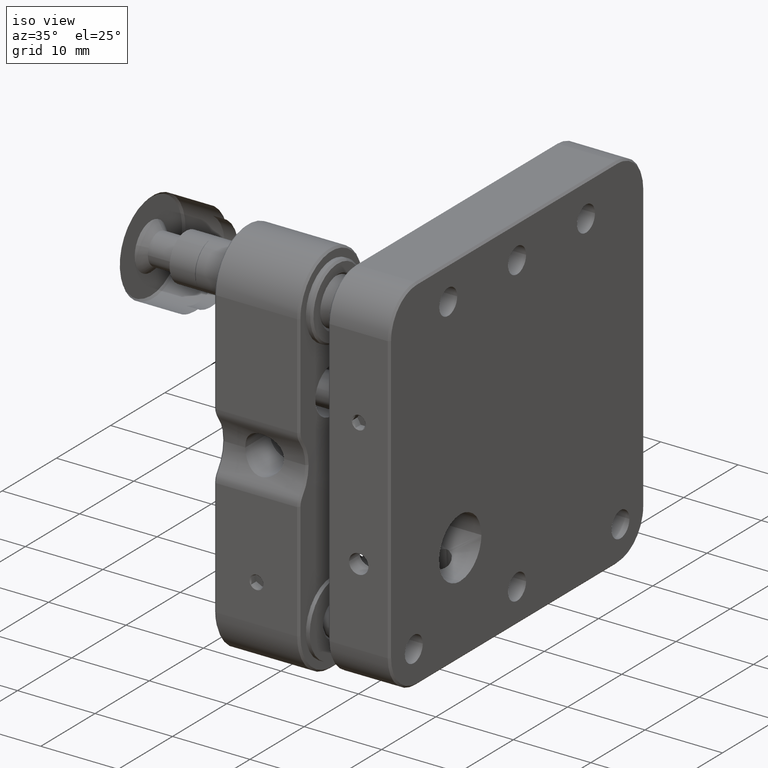
[diagram: clean part render]
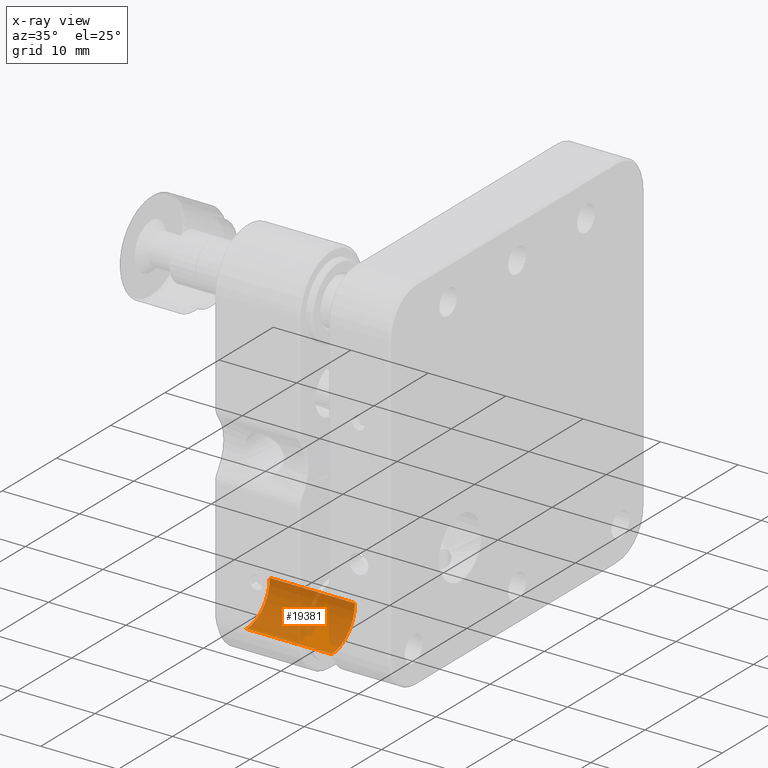
[diagram: x-ray — body ghosted, one internal face saturated and labeled with its STEP entity id]
A machine part, iso view, then the same camera in x-ray: the body is ghosted and one INTERNAL B-rep face — a face not visible from any outside direction — is saturated and labeled: STEP entity #19381.
In plain terms, the highlighted face is a freeform B-spline surface patch.
Its self-contained STEP definition (entity closure, byte-faithful):
#142 = CARTESIAN_POINT ( 'NONE',  ( -5.499999999999999112, -16.95096665722929430, -22.51146011604475916 ) ) ;
#773 = CARTESIAN_POINT ( 'NONE',  ( -5.500000000000000000, -14.20000000000000107, -18.50000000000000000 ) ) ;
#2097 = ORIENTED_EDGE ( 'NONE', *, *, #51271, .F. ) ;
#3439 = EDGE_CURVE ( 'NONE', #28982, #30478, #12185, .T. ) ;
#4393 = CARTESIAN_POINT ( 'NONE',  ( 5.499999999999999112, -16.88541890367778464, -22.48551037951555998 ) ) ;
#4596 = CARTESIAN_POINT ( 'NONE',  ( -5.500000000000001776, -18.22661342192264300, -22.80000224783418616 ) ) ;
#4710 = CARTESIAN_POINT ( 'NONE',  ( 5.500000000000000000, -14.45355748307724753, -19.95532752036529445 ) ) ;
#5540 = CARTESIAN_POINT ( 'NONE',  ( -5.500000000000000000, -16.26947522137271207, -22.17697453442569611 ) ) ;
#5853 = CARTESIAN_POINT ( 'NONE',  ( -5.500000000000000000, -16.39447607679202079, -22.24998594055514189 ) ) ;
#6162 = CARTESIAN_POINT ( 'NONE',  ( -5.500000000000000888, -15.66933024795504714, -21.75044452250011062 ) ) ;
#6881 = CARTESIAN_POINT ( 'NONE',  ( 6.601199999999999513, -22.80000000000000071, -18.50000000000000000 ) ) ;
#8452 = EDGE_CURVE ( 'NONE', #30478, #36833, #54552, .T. ) ;
#8541 = CARTESIAN_POINT ( 'NONE',  ( 5.500000000000000888, -14.48853988395805992, -20.04903334277624793 ) ) ;
#8636 = VERTEX_POINT ( 'NONE', #49867 ) ;
#8852 = CARTESIAN_POINT ( 'NONE',  ( 5.500000000000000888, -16.08619210922708476, -22.05932624137608755 ) ) ;
#9163 = CARTESIAN_POINT ( 'NONE',  ( 5.499999999999999112, -16.78312838209368962, -22.44256320102994096 ) ) ;
#9675 = CARTESIAN_POINT ( 'NONE',  ( -5.500000000000000000, -17.04467509686296722, -22.54644355303379299 ) ) ;
#9886 = ORIENTED_EDGE ( 'NONE', *, *, #27506, .T. ) ;
#10308 = CARTESIAN_POINT ( 'NONE',  ( -5.500000000000001776, -15.20597241733055327, -21.27096481368568703 ) ) ;
#10601 = CARTESIAN_POINT ( 'NONE',  ( 5.500000000000000000, -14.20000000000000107, -18.50000000000000000 ) ) ;
#10616 = CARTESIAN_POINT ( 'NONE',  ( -5.500000000000001776, -14.94067375859245317, -20.91380789070399970 ) ) ;
#11647 = CARTESIAN_POINT ( 'NONE',  ( -6.601199999999999513, -18.50000000000000000, -22.80000000000000071 ) ) ;
#11954 = CARTESIAN_POINT ( 'NONE',  ( 6.601200000000026158, -14.19999999999999751, -14.19999999999996909 ) ) ;
#12185 = B_SPLINE_CURVE_WITH_KNOTS ( 'NONE', 1,
 ( #20094, #39503 ),
 .UNSPECIFIED., .F., .F.,
 ( 2, 2 ),
 ( 0.000000000000000000, 1.000000000000000000 ),
 .UNSPECIFIED. ) ;
#12649 = CARTESIAN_POINT ( 'NONE',  ( 5.500000000000000000, -18.50000000000007461, -22.80000000000000071 ) ) ;
#14088 =( BOUNDED_SURFACE ( )  B_SPLINE_SURFACE ( 1, 2, ( 
 ( #20871, #45705, #21502, #40916, #11647, #35842, #50151, #25978, #45389 ),
 ( #31060, #50465, #6881, #26292, #60321, #35206, #25669, #11954, #39971 ) ),
 .UNSPECIFIED., .F., .T., .F. ) 
 B_SPLINE_SURFACE_WITH_KNOTS ( ( 2, 2 ),
 ( 3, 2, 2, 2, 3 ),
 ( 0.000000000000000000, 13.20240000000000080 ),
 ( 0.000000000000000000, 1.570796326794895004, 3.141592653589795336, 4.712388980384689674, 6.283185307179590673 ),
 .UNSPECIFIED. ) 
 GEOMETRIC_REPRESENTATION_ITEM ( )  RATIONAL_B_SPLINE_SURFACE ( (
 ( 1.000000000000000000, 0.7071067811865480168, 1.000000000000000000, 0.7071067811865480168, 1.000000000000000000, 0.7071067811865480168, 1.000000000000000000, 0.7071067811865480168, 1.000000000000000000),
 ( 1.000000000000000000, 0.7071067811865480168, 1.000000000000000000, 0.7071067811865480168, 1.000000000000000000, 0.7071067811865480168, 1.000000000000000000, 0.7071067811865480168, 1.000000000000000000) ) ) 
 REPRESENTATION_ITEM ( '' )  SURFACE ( )  );
#14268 = CARTESIAN_POINT ( 'NONE',  ( 5.500000000000000000, -15.06334278835812590, -21.10144516869189601 ) ) ;
#15411 = CARTESIAN_POINT ( 'NONE',  ( -5.500000000000002665, -14.71190257830450143, -20.54390677448347802 ) ) ;
#16535 = ORIENTED_EDGE ( 'NONE', *, *, #3439, .F. ) ;
#18725 = CARTESIAN_POINT ( 'NONE',  ( 5.500000000000000000, -14.75001405942920130, -20.60552392317746140 ) ) ;
#18745 = EDGE_LOOP ( 'NONE', ( #2097, #9886, #58898, #16535 ) ) ;
#19030 = CARTESIAN_POINT ( 'NONE',  ( 5.500000000000000000, -16.84984397741196105, -22.47093617034640189 ) ) ;
#19381 = ADVANCED_FACE ( 'NONE', ( #55231 ), #14088, .T. ) ;
#20094 = CARTESIAN_POINT ( 'NONE',  ( -5.500000000000000000, -14.20000000000000107, -18.50000000000000000 ) ) ;
#20165 = B_SPLINE_CURVE_WITH_KNOTS ( 'NONE', 3,
 ( #52949, #4596, #33873, #53263, #43741, #9675, #48504, #142, #44681, #48822, #5853, #5540, #35440, #25586, #6162, #58675, #10308, #39277, #40515, #10616, #54208, #15411, #25277, #25896, #44380, #34810, #30041, #49135, #773 ),
 .UNSPECIFIED., .F., .F.,
 ( 4, 1, 1, 1, 2, 2, 1, 2, 2, 2, 1, 2, 2, 1, 1, 2, 2, 4 ),
 ( 0.5000000000000000000, 0.5625000000000004441, 0.5937500000000006661, 0.6093750000000011102, 0.6171875000000008882, 0.6250000000000006661, 0.6562500000000013323, 0.6718750000000015543, 0.6875000000000019984, 0.7500000000000042188, 0.7812500000000055511, 0.7968750000000059952, 0.8125000000000064393, 0.8437500000000066613, 0.8593750000000071054, 0.8671875000000068834, 0.8750000000000067724, 1.000000000000000000 ),
 .UNSPECIFIED. ) ;
#20871 = CARTESIAN_POINT ( 'NONE',  ( -6.601199999999999513, -18.50000000000000000, -14.20000000000000107 ) ) ;
#21502 = CARTESIAN_POINT ( 'NONE',  ( -6.601199999999999513, -22.80000000000000071, -18.50000000000000000 ) ) ;
#23185 = CARTESIAN_POINT ( 'NONE',  ( 5.500000000000002665, -14.47714422568909143, -20.01917978082988370 ) ) ;
#24444 = CARTESIAN_POINT ( 'NONE',  ( 5.500000000000000888, -14.34781025370084961, -19.63374338619868453 ) ) ;
#25277 = CARTESIAN_POINT ( 'NONE',  ( -5.499999999999998224, -14.60121569812172915, -20.31631183491078119 ) ) ;
#25586 = CARTESIAN_POINT ( 'NONE',  ( -5.500000000000001776, -15.89855483130786595, -21.93665721163527493 ) ) ;
#25669 = CARTESIAN_POINT ( 'NONE',  ( 6.601199999999999513, -14.20000000000000107, -18.50000000000000000 ) ) ;
#25896 = CARTESIAN_POINT ( 'NONE',  ( -5.500000000000000888, -14.55743679902315613, -20.21687161802254451 ) ) ;
#25978 = CARTESIAN_POINT ( 'NONE',  ( -6.601200000000012835, -14.19999999999996909, -14.19999999999999751 ) ) ;
#26292 = CARTESIAN_POINT ( 'NONE',  ( 6.601199999999998624, -22.80000000000000426, -22.80000000000000426 ) ) ;
#26649 = CARTESIAN_POINT ( 'NONE',  ( 5.500000000000000000, -18.50000000000007461, -22.80000000000000071 ) ) ;
#27506 = EDGE_CURVE ( 'NONE', #8636, #36833, #34854, .T. ) ;
#28583 = CARTESIAN_POINT ( 'NONE',  ( 5.499999999999999112, -16.26860996287740946, -22.17858961196843737 ) ) ;
#28982 = VERTEX_POINT ( 'NONE', #62098 ) ;
#29210 = CARTESIAN_POINT ( 'NONE',  ( 5.500000000000000888, -14.64537938028682262, -20.41549894554966471 ) ) ;
#30041 = CARTESIAN_POINT ( 'NONE',  ( -5.500000000000002665, -14.30063676847718845, -19.57441437126552586 ) ) ;
#30478 = VERTEX_POINT ( 'NONE', #10601 ) ;
#31060 = CARTESIAN_POINT ( 'NONE',  ( 6.601199999999999513, -18.50000000000000000, -14.20000000000000107 ) ) ;
#33355 = CARTESIAN_POINT ( 'NONE',  ( 5.500000000000002665, -15.72903518647043875, -21.79402758282004982 ) ) ;
#33873 = CARTESIAN_POINT ( 'NONE',  ( -5.499999999999998224, -17.82372258197510106, -22.76226514553087554 ) ) ;
#34810 = CARTESIAN_POINT ( 'NONE',  ( -5.500000000000001776, -14.51448990149119567, -20.11458180610671675 ) ) ;
#34854 = B_SPLINE_CURVE_WITH_KNOTS ( 'NONE', 1,
 ( #36200, #26649 ),
 .UNSPECIFIED., .F., .F.,
 ( 2, 2 ),
 ( 1.101200000000033263, 12.10120000000000218 ),
 .UNSPECIFIED. ) ;
#35206 = CARTESIAN_POINT ( 'NONE',  ( 6.601200000000026158, -14.19999999999999751, -22.80000000000000426 ) ) ;
#35440 = CARTESIAN_POINT ( 'NONE',  ( -5.499999999999999112, -16.20910886772790604, -22.13968656989143469 ) ) ;
#35842 = CARTESIAN_POINT ( 'NONE',  ( -6.601200000000012835, -14.19999999999996909, -22.80000000000000426 ) ) ;
#36200 = CARTESIAN_POINT ( 'NONE',  ( -5.499999999999978684, -18.50000000000006750, -22.80000000000000071 ) ) ;
#36833 = VERTEX_POINT ( 'NONE', #12649 ) ;
#37511 = CARTESIAN_POINT ( 'NONE',  ( 5.500000000000000000, -15.90454331190800374, -21.92921129994519447 ) ) ;
#37829 = CARTESIAN_POINT ( 'NONE',  ( 5.500000000000000888, -16.02396127590041175, -22.01636933292238396 ) ) ;
#38144 = CARTESIAN_POINT ( 'NONE',  ( 5.500000000000000000, -14.82302546556432254, -20.73052477860788301 ) ) ;
#38458 = CARTESIAN_POINT ( 'NONE',  ( 5.500000000000000000, -18.50000000000007461, -22.80000000000000071 ) ) ;
#39277 = CARTESIAN_POINT ( 'NONE',  ( -5.500000000000001776, -15.07078870017313221, -21.09545668821465725 ) ) ;
#39503 = CARTESIAN_POINT ( 'NONE',  ( 5.500000000000000000, -14.20000000000000107, -18.50000000000000000 ) ) ;
#39971 = CARTESIAN_POINT ( 'NONE',  ( 6.601199999999999513, -18.50000000000000000, -14.20000000000000107 ) ) ;
#40515 = CARTESIAN_POINT ( 'NONE',  ( -5.500000000000002665, -14.98363066715292824, -20.97603872417763782 ) ) ;
#40916 = CARTESIAN_POINT ( 'NONE',  ( -6.601200000000041257, -22.79999999999994031, -22.80000000000000426 ) ) ;
#42914 = CARTESIAN_POINT ( 'NONE',  ( 5.500000000000000888, -14.19999999999999929, -18.77339225613190266 ) ) ;
#43538 = CARTESIAN_POINT ( 'NONE',  ( 5.499999999999999112, -15.24955547732136196, -21.33066975187284697 ) ) ;
#43741 = CARTESIAN_POINT ( 'NONE',  ( -5.500000000000000000, -17.14068000777053413, -22.58064501470794738 ) ) ;
#43853 = CARTESIAN_POINT ( 'NONE',  ( 5.500000000000000888, -15.56438352268602010, -21.64550386271681148 ) ) ;
#44380 = CARTESIAN_POINT ( 'NONE',  ( -5.499999999999998224, -14.52906382968309984, -20.15015602265262018 ) ) ;
#44681 = CARTESIAN_POINT ( 'NONE',  ( -5.500000000000001776, -16.78209711550257666, -22.44460800866322359 ) ) ;
#45389 = CARTESIAN_POINT ( 'NONE',  ( -6.601199999999999513, -18.50000000000000000, -14.20000000000000107 ) ) ;
#45705 = CARTESIAN_POINT ( 'NONE',  ( -6.601200000000041257, -22.79999999999994031, -14.19999999999996909 ) ) ;
#47369 = CARTESIAN_POINT ( 'NONE',  ( 5.500000000000000000, -17.42557427218264721, -22.69935873541458093 ) ) ;
#47996 = CARTESIAN_POINT ( 'NONE',  ( 5.500000000000000000, -14.23773878817894456, -19.17628735462033873 ) ) ;
#48306 = CARTESIAN_POINT ( 'NONE',  ( 5.500000000000001776, -14.55539199132539530, -20.21790288447524375 ) ) ;
#48504 = CARTESIAN_POINT ( 'NONE',  ( -5.500000000000000888, -16.98082159432395244, -22.52285631870823224 ) ) ;
#48822 = CARTESIAN_POINT ( 'NONE',  ( -5.499999999999999112, -16.58450105441151123, -22.35462061969325731 ) ) ;
#49135 = CARTESIAN_POINT ( 'NONE',  ( -5.499999999999999112, -14.19999999999999574, -19.04681195422682549 ) ) ;
#49867 = CARTESIAN_POINT ( 'NONE',  ( -5.499999999999978684, -18.50000000000006750, -22.80000000000000071 ) ) ;
#50151 = CARTESIAN_POINT ( 'NONE',  ( -6.601199999999999513, -14.20000000000000107, -18.50000000000000000 ) ) ;
#50465 = CARTESIAN_POINT ( 'NONE',  ( 6.601199999999998624, -22.80000000000000426, -14.19999999999996909 ) ) ;
#51271 = EDGE_CURVE ( 'NONE', #8636, #28982, #20165, .T. ) ;
#52124 = CARTESIAN_POINT ( 'NONE',  ( 5.500000000000000000, -14.20000000000000107, -18.50000000000000000 ) ) ;
#52746 = CARTESIAN_POINT ( 'NONE',  ( 5.500000000000000888, -16.68368816527002352, -22.39878430196088388 ) ) ;
#52949 = CARTESIAN_POINT ( 'NONE',  ( -5.499999999999978684, -18.50000000000006750, -22.80000000000000071 ) ) ;
#53263 = CARTESIAN_POINT ( 'NONE',  ( -5.499999999999999112, -17.36626406624788288, -22.65219269658149770 ) ) ;
#54208 = CARTESIAN_POINT ( 'NONE',  ( -5.499999999999999112, -14.82141038809451317, -20.73139003726031859 ) ) ;
#54552 = B_SPLINE_CURVE_WITH_KNOTS ( 'NONE', 3,
 ( #52124, #42914, #47996, #24444, #62928, #4710, #23185, #8541, #48306, #29210, #18725, #38144, #57537, #14268, #43538, #43853, #33355, #37511, #37829, #8852, #28583, #62617, #52746, #9163, #19030, #4393, #47369, #58161, #38458 ),
 .UNSPECIFIED., .F., .F.,
 ( 4, 1, 1, 1, 2, 2, 1, 2, 2, 2, 1, 2, 2, 1, 1, 2, 2, 4 ),
 ( 0.000000000000000000, 0.06250000000000063838, 0.09375000000000095757, 0.1093750000000015682, 0.1171875000000014849, 0.1250000000000014155, 0.1562500000000012212, 0.1718750000000013878, 0.1875000000000015543, 0.2500000000000027756, 0.2812500000000032752, 0.2968750000000035527, 0.3125000000000038303, 0.3437500000000036637, 0.3593750000000032752, 0.3671875000000031086, 0.3750000000000028866, 0.5000000000000000000 ),
 .UNSPECIFIED. ) ;
#55231 = FACE_OUTER_BOUND ( 'NONE', #18745, .T. ) ;
#57537 = CARTESIAN_POINT ( 'NONE',  ( 5.500000000000000000, -14.86031343011017292, -20.79089113227215435 ) ) ;
#58161 = CARTESIAN_POINT ( 'NONE',  ( 5.499999999999999112, -17.95322684382843903, -22.79999550430417088 ) ) ;
#58675 = CARTESIAN_POINT ( 'NONE',  ( -5.499999999999998224, -15.35449613736924412, -21.43561647740316189 ) ) ;
#58898 = ORIENTED_EDGE ( 'NONE', *, *, #8452, .F. ) ;
#60321 = CARTESIAN_POINT ( 'NONE',  ( 6.601199999999999513, -18.50000000000000000, -22.80000000000000071 ) ) ;
#62098 = CARTESIAN_POINT ( 'NONE',  ( -5.500000000000000000, -14.20000000000000107, -18.50000000000000000 ) ) ;
#62617 = CARTESIAN_POINT ( 'NONE',  ( 5.500000000000000000, -16.45609322575755940, -22.28809742180563447 ) ) ;
#62928 = CARTESIAN_POINT ( 'NONE',  ( 5.500000000000000000, -14.41935670629008648, -19.85932433948999432 ) ) ;